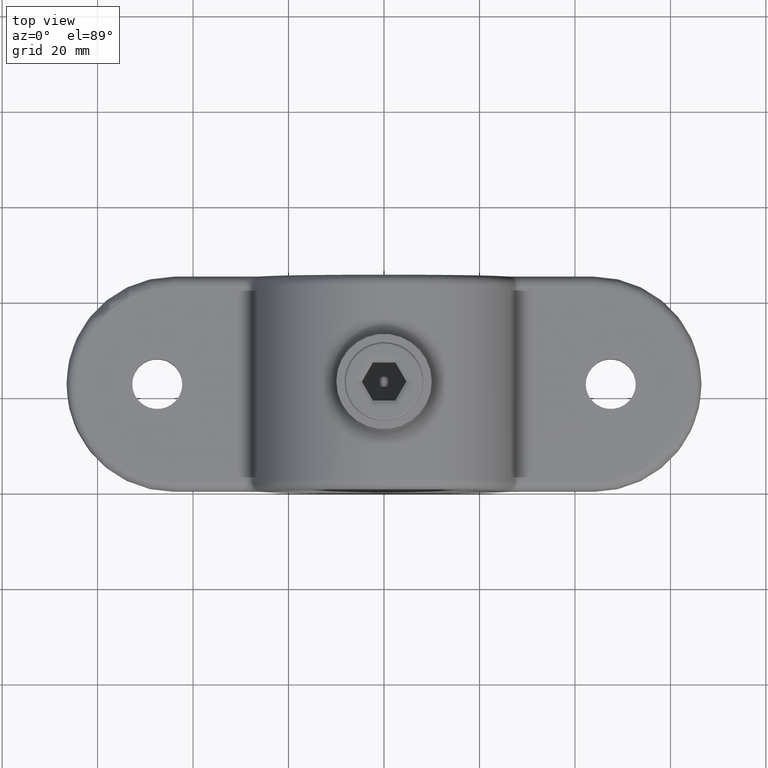
[diagram: clean part render]
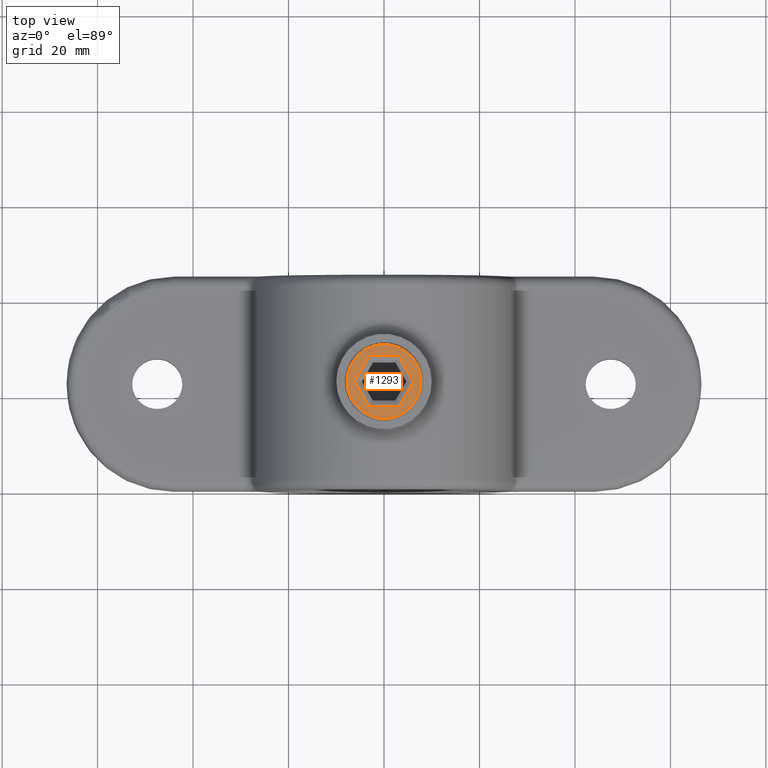
[diagram: same view with one face highlighted and labeled with its STEP entity id]
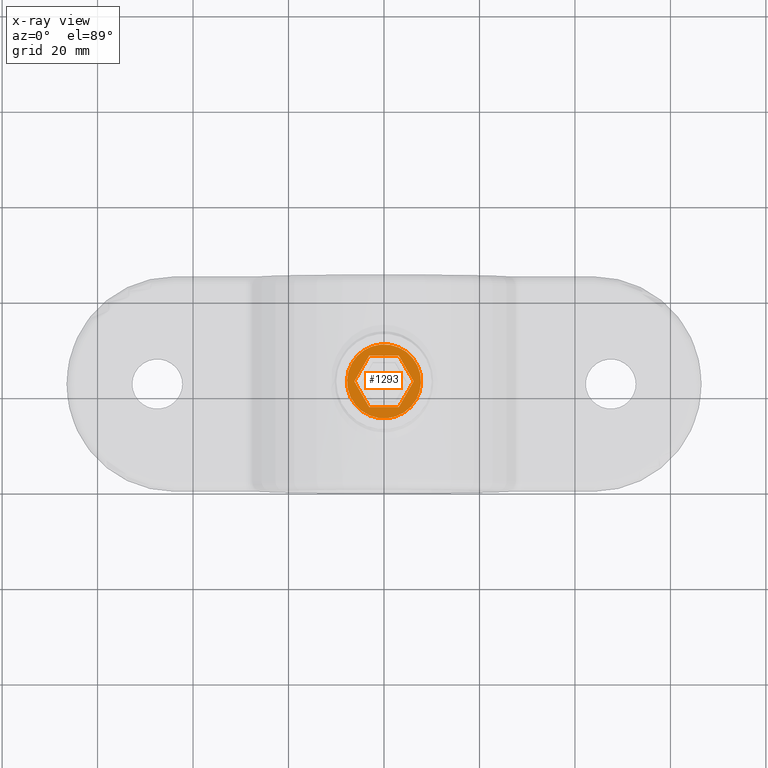
[diagram: x-ray of the same camera — body ghosted, the highlighted face saturated]
A machine part, top view. The second image highlights one B-rep face of the part: STEP entity #1293.
The next image is the same camera in x-ray: the body ghosted, the highlighted face saturated — about 0% of this face is hidden behind the body in this view.
In plain terms, the highlighted planar face has unit normal (0, 0, 1).
Its self-contained STEP definition (entity closure, byte-faithful):
#65 = DIRECTION ( 'NONE',  ( 0.000000000000000000, 1.000000000000000000, 0.000000000000000000 ) ) ;
#67 = ORIENTED_EDGE ( 'NONE', *, *, #299, .T. ) ;
#142 = ORIENTED_EDGE ( 'NONE', *, *, #2365, .T. ) ;
#163 = CARTESIAN_POINT ( 'NONE',  ( 3.101262615825978397, 13.00000000000000000, 5.371544418224548423 ) ) ;
#182 = VERTEX_POINT ( 'NONE', #1211 ) ;
#210 = ORIENTED_EDGE ( 'NONE', *, *, #925, .T. ) ;
#216 = VECTOR ( 'NONE', #1182, 1000.000000000000114 ) ;
#223 = ORIENTED_EDGE ( 'NONE', *, *, #1571, .T. ) ;
#286 = VERTEX_POINT ( 'NONE', #2804 ) ;
#295 = CARTESIAN_POINT ( 'NONE',  ( 5.964981491036367878, 13.00000000000000000, -0.4114378277661481231 ) ) ;
#299 = EDGE_CURVE ( 'NONE', #1503, #182, #1871, .T. ) ;
#332 = VERTEX_POINT ( 'NONE', #163 ) ;
#464 = PLANE ( 'NONE',  #2493 ) ;
#496 = LINE ( 'NONE', #606, #828 ) ;
#599 = LINE ( 'NONE', #1197, #2216 ) ;
#606 = CARTESIAN_POINT ( 'NONE',  ( -3.338806356441553547, 13.00000000000000000, -4.960106590458400966 ) ) ;
#620 = DIRECTION ( 'NONE',  ( 0.4999999999999997780, 0.000000000000000000, -0.8660254037844387076 ) ) ;
#621 = EDGE_CURVE ( 'NONE', #286, #1503, #496, .T. ) ;
#645 = AXIS2_PLACEMENT_3D ( 'NONE', #2503, #65, #1159 ) ;
#689 = DIRECTION ( 'NONE',  ( 0.000000000000000000, -0.000000000000000000, 1.000000000000000000 ) ) ;
#808 = DIRECTION ( 'NONE',  ( -1.000000000000000000, 0.000000000000000000, -1.855319225643643478E-16 ) ) ;
#828 = VECTOR ( 'NONE', #620, 1000.000000000000227 ) ;
#893 = VECTOR ( 'NONE', #2232, 1000.000000000000000 ) ;
#925 = EDGE_CURVE ( 'NONE', #332, #1784, #927, .T. ) ;
#927 = LINE ( 'NONE', #2138, #1158 ) ;
#973 = CARTESIAN_POINT ( 'NONE',  ( -5.964981491036366990, 13.00000000000000000, 0.4114378277661476790 ) ) ;
#978 = VERTEX_POINT ( 'NONE', #2368 ) ;
#1015 = ORIENTED_EDGE ( 'NONE', *, *, #621, .T. ) ;
#1060 = CIRCLE ( 'NONE', #645, 7.750000000000000000 ) ;
#1061 = EDGE_CURVE ( 'NONE', #182, #978, #1834, .T. ) ;
#1113 = EDGE_CURVE ( 'NONE', #978, #332, #599, .T. ) ;
#1158 = VECTOR ( 'NONE', #808, 1000.000000000000000 ) ;
#1159 = DIRECTION ( 'NONE',  ( 0.000000000000000000, 0.000000000000000000, 1.000000000000000000 ) ) ;
#1182 = DIRECTION ( 'NONE',  ( -0.4999999999999998335, 0.000000000000000000, -0.8660254037844387076 ) ) ;
#1197 = CARTESIAN_POINT ( 'NONE',  ( 3.338806356441557099, 13.00000000000000000, 4.960106590458402742 ) ) ;
#1211 = CARTESIAN_POINT ( 'NONE',  ( 3.101262615825974844, 13.00000000000000000, -5.371544418224547535 ) ) ;
#1244 = DIRECTION ( 'NONE',  ( 1.000000000000000000, -0.000000000000000000, 0.000000000000000000 ) ) ;
#1267 = ORIENTED_EDGE ( 'NONE', *, *, #1113, .T. ) ;
#1293 = ADVANCED_FACE ( 'NONE', ( #2811, #2460 ), #464, .T. ) ;
#1351 = VECTOR ( 'NONE', #1244, 1000.000000000000000 ) ;
#1503 = VERTEX_POINT ( 'NONE', #1614 ) ;
#1548 = EDGE_LOOP ( 'NONE', ( #142 ) ) ;
#1571 = EDGE_CURVE ( 'NONE', #1784, #286, #2566, .T. ) ;
#1614 = CARTESIAN_POINT ( 'NONE',  ( -3.101262615825973068, 13.00000000000000000, -5.371544418224547535 ) ) ;
#1640 = DIRECTION ( 'NONE',  ( -0.4999999999999992228, 0.000000000000000000, 0.8660254037844390407 ) ) ;
#1696 = CARTESIAN_POINT ( 'NONE',  ( -3.101262615825973956, 13.00000000000000000, 5.371544418224547535 ) ) ;
#1784 = VERTEX_POINT ( 'NONE', #1696 ) ;
#1834 = LINE ( 'NONE', #295, #893 ) ;
#1871 = LINE ( 'NONE', #2139, #1351 ) ;
#2138 = CARTESIAN_POINT ( 'NONE',  ( -2.626175134594815219, 13.00000000000000000, 5.371544418224547535 ) ) ;
#2139 = CARTESIAN_POINT ( 'NONE',  ( 2.626175134594813443, 13.00000000000000000, -5.371544418224547535 ) ) ;
#2216 = VECTOR ( 'NONE', #1640, 1000.000000000000227 ) ;
#2227 = CARTESIAN_POINT ( 'NONE',  ( 0.000000000000000000, 13.00000000000000000, 7.750000000000000000 ) ) ;
#2232 = DIRECTION ( 'NONE',  ( 0.4999999999999998890, -0.000000000000000000, 0.8660254037844387076 ) ) ;
#2365 = EDGE_CURVE ( 'NONE', #2763, #2763, #1060, .T. ) ;
#2368 = CARTESIAN_POINT ( 'NONE',  ( 6.202525231651947912, 13.00000000000000000, -1.409462824231155764E-15 ) ) ;
#2460 = FACE_OUTER_BOUND ( 'NONE', #1548, .T. ) ;
#2493 = AXIS2_PLACEMENT_3D ( 'NONE', #2866, #2687, #689 ) ;
#2503 = CARTESIAN_POINT ( 'NONE',  ( 0.000000000000000000, 13.00000000000000000, 0.000000000000000000 ) ) ;
#2566 = LINE ( 'NONE', #973, #216 ) ;
#2687 = DIRECTION ( 'NONE',  ( 0.000000000000000000, 1.000000000000000000, 0.000000000000000000 ) ) ;
#2691 = EDGE_LOOP ( 'NONE', ( #223, #1015, #67, #2767, #1267, #210 ) ) ;
#2763 = VERTEX_POINT ( 'NONE', #2227 ) ;
#2767 = ORIENTED_EDGE ( 'NONE', *, *, #1061, .T. ) ;
#2804 = CARTESIAN_POINT ( 'NONE',  ( -6.202525231651947024, 13.00000000000000000, 8.673617379884035472E-16 ) ) ;
#2811 = FACE_BOUND ( 'NONE', #2691, .T. ) ;
#2866 = CARTESIAN_POINT ( 'NONE',  ( 0.000000000000000000, 13.00000000000000000, 0.000000000000000000 ) ) ;